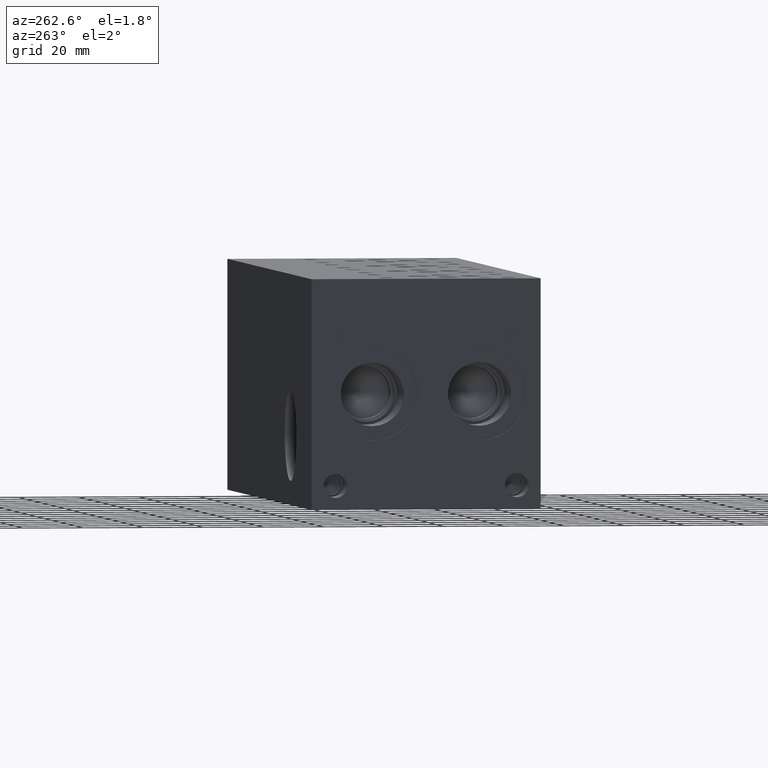
[diagram: clean part render]
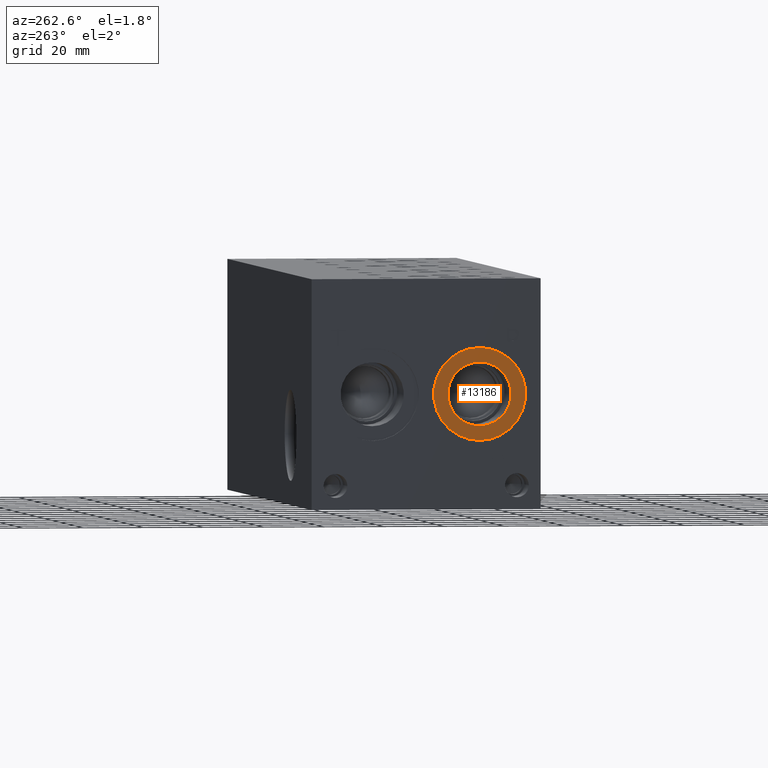
[diagram: same view with one face highlighted and labeled with its STEP entity id]
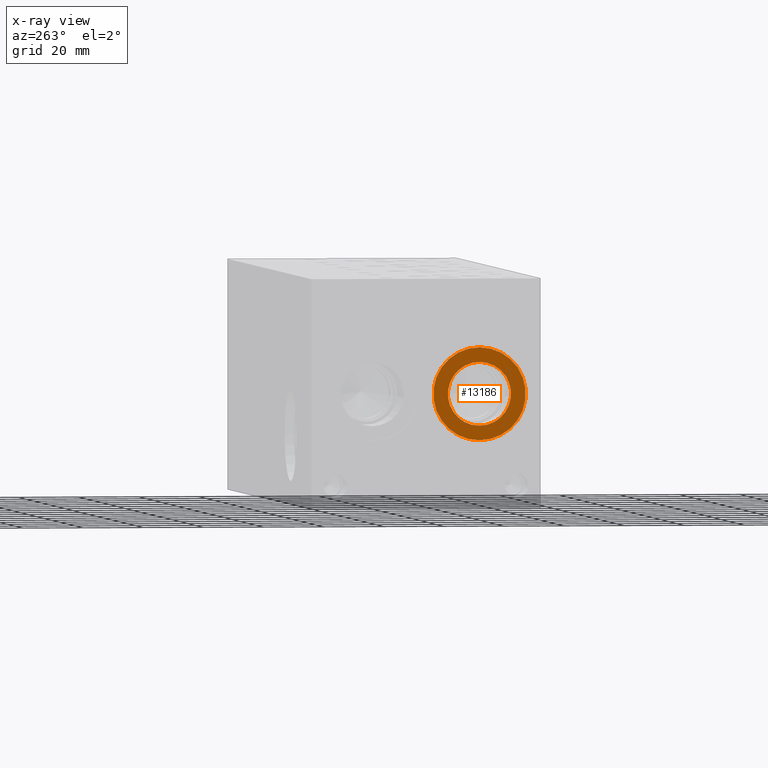
[diagram: x-ray of the same camera — body ghosted, the highlighted face saturated]
A machine part, auxiliary view. The second image highlights one B-rep face of the part: STEP entity #13186.
The next image is the same camera in x-ray: the body ghosted, the highlighted face saturated — about 0% of this face is hidden behind the body in this view.
In plain terms, the highlighted planar face has unit normal (1, 0, 0).
Its self-contained STEP definition (entity closure, byte-faithful):
#399=CIRCLE('',#14013,15.3416);
#400=CIRCLE('',#14015,10.5283);
#534=FACE_BOUND('',#2488,.T.);
#1647=FACE_OUTER_BOUND('',#2487,.T.);
#2487=EDGE_LOOP('',(#11422));
#2488=EDGE_LOOP('',(#11423));
#6278=VERTEX_POINT('',#22200);
#6279=VERTEX_POINT('',#22204);
#8016=EDGE_CURVE('',#6278,#6278,#399,.T.);
#8017=EDGE_CURVE('',#6279,#6279,#400,.T.);
#11422=ORIENTED_EDGE('',*,*,#8016,.F.);
#11423=ORIENTED_EDGE('',*,*,#8017,.T.);
#11998=PLANE('',#14014);
#13186=ADVANCED_FACE('',(#1647,#534),#11998,.F.);
#14013=AXIS2_PLACEMENT_3D('',#22202,#16886,#16887);
#14014=AXIS2_PLACEMENT_3D('',#22203,#16888,#16889);
#14015=AXIS2_PLACEMENT_3D('',#22205,#16890,#16891);
#16886=DIRECTION('center_axis',(1.,0.,0.));
#16887=DIRECTION('ref_axis',(0.,0.,-1.));
#16888=DIRECTION('center_axis',(1.,0.,0.));
#16889=DIRECTION('ref_axis',(0.,0.,-1.));
#16890=DIRECTION('center_axis',(1.,0.,0.));
#16891=DIRECTION('ref_axis',(0.,0.,-1.));
#22200=CARTESIAN_POINT('',(0.7874,20.2438,22.7584));
#22202=CARTESIAN_POINT('Origin',(0.7874,20.2438,38.1));
#22203=CARTESIAN_POINT('Origin',(0.7874,20.2438,48.6283));
#22204=CARTESIAN_POINT('',(0.787400000000001,20.2438,27.5717));
#22205=CARTESIAN_POINT('Origin',(0.7874,20.2438,38.1));